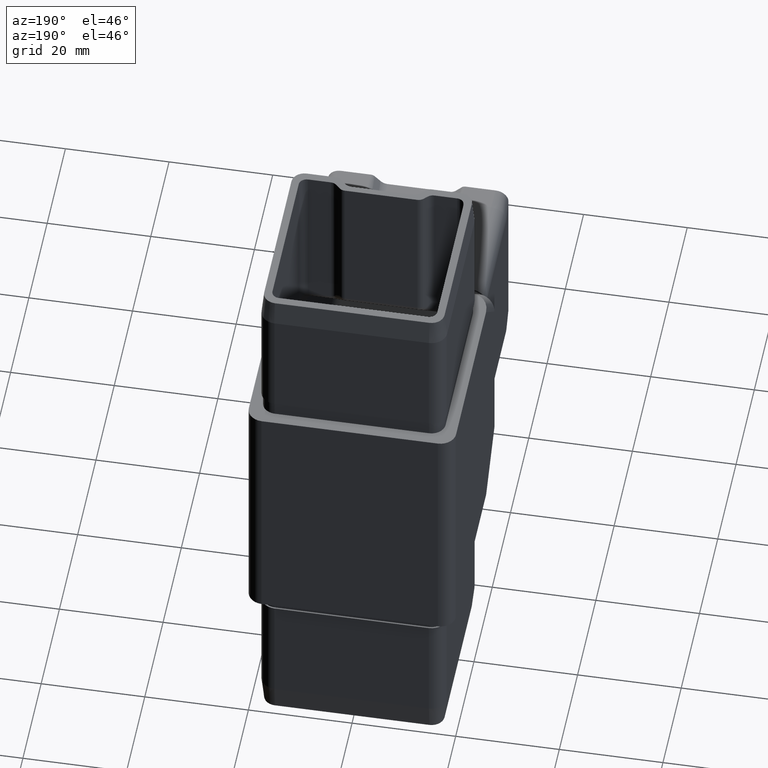
[diagram: clean part render]
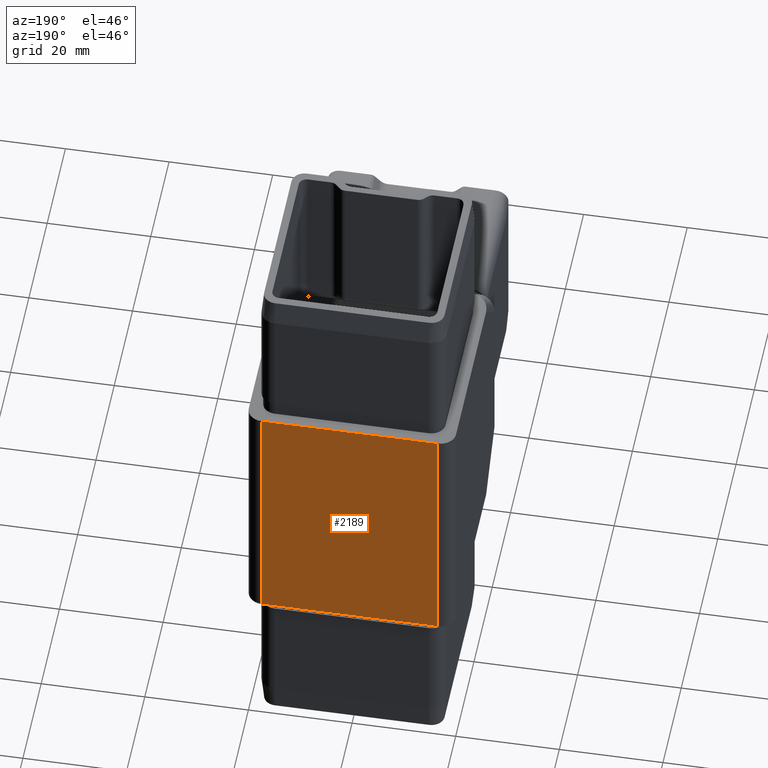
[diagram: same view with one face highlighted and labeled with its STEP entity id]
A machine part, auxiliary view. The second image highlights one B-rep face of the part: STEP entity #2189.
In plain terms, the highlighted planar face has unit normal (0, -1, 0).
Its self-contained STEP definition (entity closure, byte-faithful):
#174 = PLANE ( 'NONE',  #2415 ) ;
#197 = CARTESIAN_POINT ( 'NONE',  ( 17.00000000000000000, 22.50000000000000000, 25.00000000000000000 ) ) ;
#756 = LINE ( 'NONE', #14841, #4795 ) ;
#2189 = ADVANCED_FACE ( 'NONE', ( #14600 ), #174, .F. ) ;
#2415 = AXIS2_PLACEMENT_3D ( 'NONE', #19413, #20745, #8106 ) ;
#2484 = LINE ( 'NONE', #11752, #12974 ) ;
#2970 = EDGE_CURVE ( 'NONE', #13876, #16395, #11835, .T. ) ;
#3343 = VERTEX_POINT ( 'NONE', #14892 ) ;
#3763 = EDGE_CURVE ( 'NONE', #13876, #5914, #15761, .T. ) ;
#4041 = CARTESIAN_POINT ( 'NONE',  ( -20.00000000000000400, 22.50000000000000000, 25.00000000000000000 ) ) ;
#4098 = EDGE_CURVE ( 'NONE', #3343, #16395, #756, .T. ) ;
#4795 = VECTOR ( 'NONE', #11914, 1000.000000000000000 ) ;
#5062 = VECTOR ( 'NONE', #12144, 1000.000000000000000 ) ;
#5914 = VERTEX_POINT ( 'NONE', #8631 ) ;
#7088 = DIRECTION ( 'NONE',  ( -1.000000000000000000, -0.0000000000000000000, -0.0000000000000000000 ) ) ;
#7603 = VECTOR ( 'NONE', #19961, 1000.000000000000000 ) ;
#8106 = DIRECTION ( 'NONE',  ( 0.0000000000000000000, -0.0000000000000000000, -1.000000000000000000 ) ) ;
#8626 = ORIENTED_EDGE ( 'NONE', *, *, #3763, .T. ) ;
#8631 = CARTESIAN_POINT ( 'NONE',  ( 17.00000000000000000, 22.50000000000000000, -25.00000000000000000 ) ) ;
#8648 = EDGE_LOOP ( 'NONE', ( #14895, #17436, #9543, #8626 ) ) ;
#9543 = ORIENTED_EDGE ( 'NONE', *, *, #2970, .F. ) ;
#11752 = CARTESIAN_POINT ( 'NONE',  ( -20.00000000000000400, 22.50000000000000000, -25.00000000000000000 ) ) ;
#11835 = LINE ( 'NONE', #4041, #7603 ) ;
#11909 = EDGE_CURVE ( 'NONE', #5914, #3343, #2484, .T. ) ;
#11914 = DIRECTION ( 'NONE',  ( -0.0000000000000000000, -0.0000000000000000000, 1.000000000000000000 ) ) ;
#12144 = DIRECTION ( 'NONE',  ( 0.0000000000000000000, 0.0000000000000000000, -1.000000000000000000 ) ) ;
#12974 = VECTOR ( 'NONE', #7088, 1000.000000000000000 ) ;
#13665 = CARTESIAN_POINT ( 'NONE',  ( 17.00000000000000000, 22.50000000000000000, 25.00000000000000000 ) ) ;
#13876 = VERTEX_POINT ( 'NONE', #197 ) ;
#14600 = FACE_OUTER_BOUND ( 'NONE', #8648, .T. ) ;
#14841 = CARTESIAN_POINT ( 'NONE',  ( -17.00000000000000400, 22.50000000000000000, 25.00000000000000000 ) ) ;
#14892 = CARTESIAN_POINT ( 'NONE',  ( -17.00000000000000400, 22.50000000000000000, -25.00000000000000000 ) ) ;
#14895 = ORIENTED_EDGE ( 'NONE', *, *, #11909, .T. ) ;
#15761 = LINE ( 'NONE', #13665, #5062 ) ;
#15928 = CARTESIAN_POINT ( 'NONE',  ( -17.00000000000000400, 22.50000000000000000, 25.00000000000000000 ) ) ;
#16395 = VERTEX_POINT ( 'NONE', #15928 ) ;
#17436 = ORIENTED_EDGE ( 'NONE', *, *, #4098, .T. ) ;
#19413 = CARTESIAN_POINT ( 'NONE',  ( -20.00000000000000400, 22.50000000000000000, 25.00000000000000000 ) ) ;
#19961 = DIRECTION ( 'NONE',  ( -1.000000000000000000, -0.0000000000000000000, -0.0000000000000000000 ) ) ;
#20745 = DIRECTION ( 'NONE',  ( 0.0000000000000000000, -1.000000000000000000, 0.0000000000000000000 ) ) ;